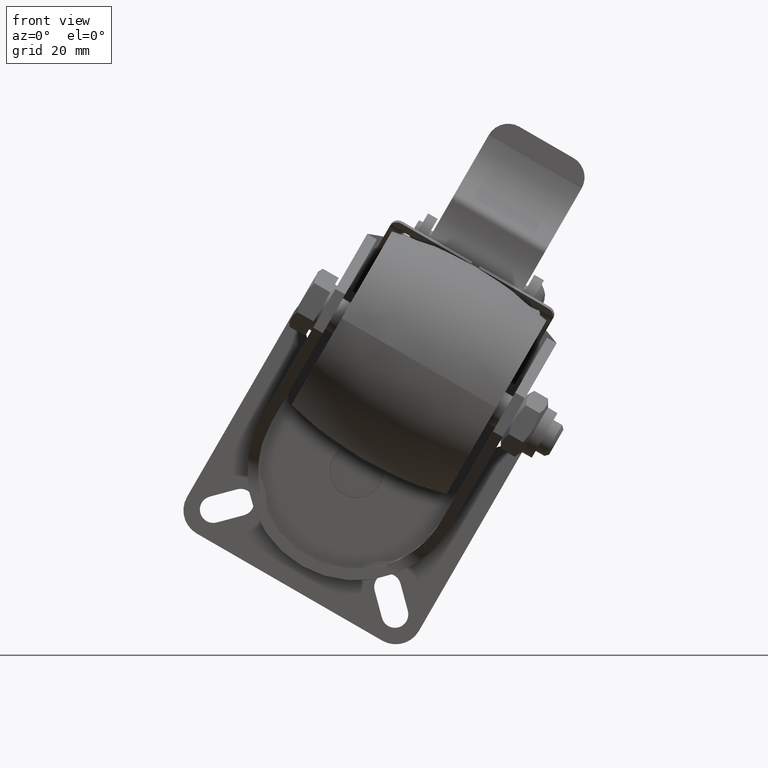
[diagram: clean part render]
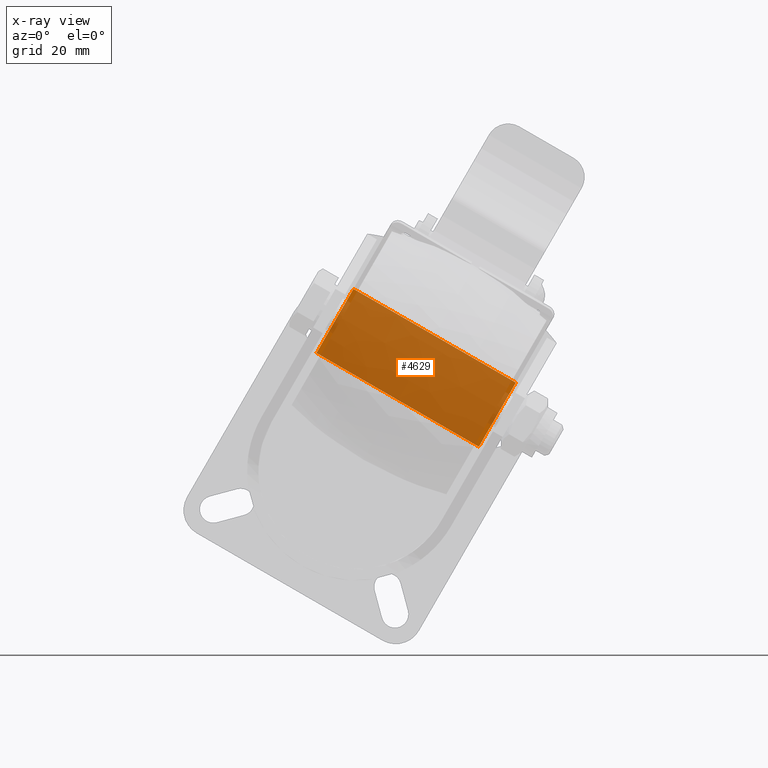
[diagram: x-ray — body ghosted, one internal face saturated and labeled with its STEP entity id]
A machine part, front view, then the same camera in x-ray: the body is ghosted and one INTERNAL B-rep face — a face not visible from any outside direction — is saturated and labeled: STEP entity #4629.
In plain terms, the highlighted planar face has unit normal (0, 1, 0).
Its self-contained STEP definition (entity closure, byte-faithful):
#332=PLANE('',#5018);
#537=FACE_OUTER_BOUND('',#859,.T.);
#859=EDGE_LOOP('',(#3608,#3609,#3610,#3611));
#1490=LINE('',#7560,#1764);
#1502=LINE('',#7590,#1776);
#1509=LINE('',#7608,#1783);
#1510=LINE('',#7609,#1784);
#1764=VECTOR('',#5853,42.);
#1776=VECTOR('',#5891,16.5730440783658);
#1783=VECTOR('',#5910,16.5730440783658);
#1784=VECTOR('',#5911,42.);
#2174=VERTEX_POINT('',#7557);
#2175=VERTEX_POINT('',#7559);
#2180=VERTEX_POINT('',#7589);
#2185=VERTEX_POINT('',#7607);
#2692=EDGE_CURVE('',#2175,#2174,#1490,.T.);
#2708=EDGE_CURVE('',#2175,#2180,#1502,.T.);
#2717=EDGE_CURVE('',#2185,#2174,#1509,.T.);
#2718=EDGE_CURVE('',#2180,#2185,#1510,.T.);
#3608=ORIENTED_EDGE('',*,*,#2692,.T.);
#3609=ORIENTED_EDGE('',*,*,#2717,.F.);
#3610=ORIENTED_EDGE('',*,*,#2718,.F.);
#3611=ORIENTED_EDGE('',*,*,#2708,.F.);
#4629=ADVANCED_FACE('',(#537),#332,.T.);
#5018=AXIS2_PLACEMENT_3D('',#7606,#5908,#5909);
#5853=DIRECTION('',(1.,0.,0.));
#5891=DIRECTION('',(0.,-1.,-2.67958745388102E-16));
#5908=DIRECTION('center_axis',(0.,2.67958745388102E-16,-1.));
#5909=DIRECTION('ref_axis',(0.,1.,2.66453525910038E-16));
#5910=DIRECTION('',(0.,1.,2.67958745388102E-16));
#5911=DIRECTION('',(1.,0.,0.));
#7557=CARTESIAN_POINT('',(21.,35.,3.));
#7559=CARTESIAN_POINT('',(-21.,35.,3.));
#7560=CARTESIAN_POINT('',(0.,35.,3.));
#7589=CARTESIAN_POINT('',(-21.,18.4269559216342,3.));
#7590=CARTESIAN_POINT('',(-21.,18.4269559216342,3.));
#7606=CARTESIAN_POINT('Origin',(0.,18.4269559216342,3.));
#7607=CARTESIAN_POINT('',(21.,18.4269559216342,3.));
#7608=CARTESIAN_POINT('',(21.,18.4269559216342,3.));
#7609=CARTESIAN_POINT('',(0.,18.4269559216342,3.));